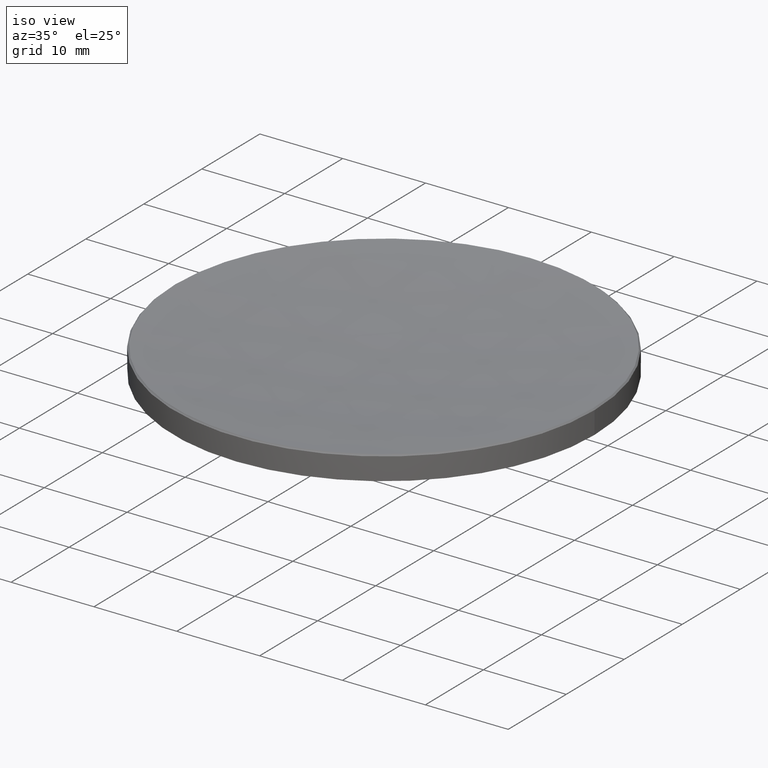
[diagram: clean part render]
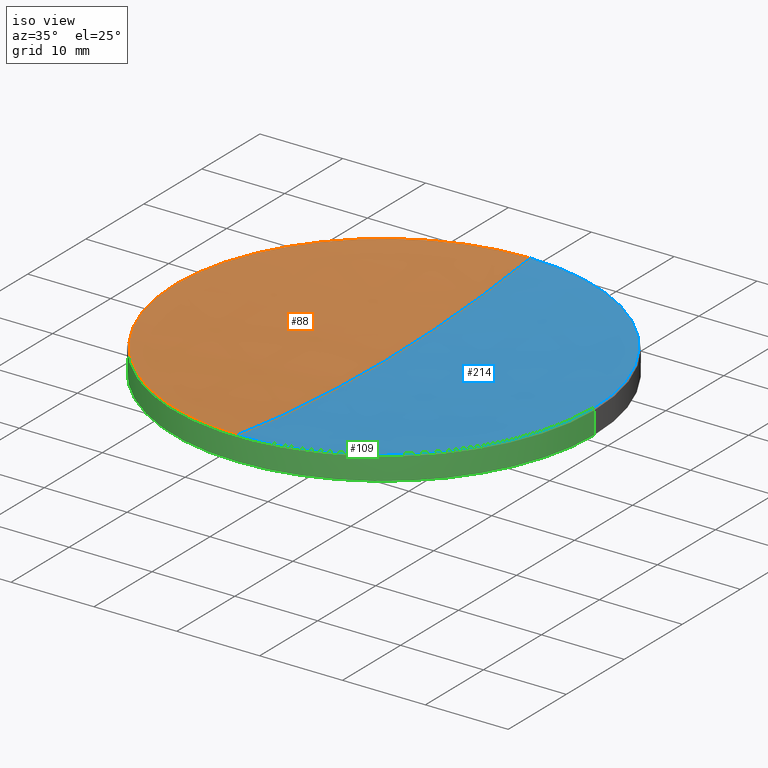
[diagram: same view with three faces highlighted in distinct colors, each labeled with its STEP entity id]
A machine part, iso view with three faces highlighted in distinct colors.
Their STEP definitions:

[orange] entity #88 — the highlighted spherical surface has radius 193.41 mm.
#1 = DIRECTION ( 'NONE',  ( -1.000000000000000000, 1.224646799147353207E-16, 0.000000000000000000 ) ) ;
#4 = EDGE_CURVE ( 'NONE', #57, #155, #127, .T. ) ;
#6 = CARTESIAN_POINT ( 'NONE',  ( 0.000000000000000000, 1.184294687115447689E-14, 15.22489014782887828 ) ) ;
#14 = CARTESIAN_POINT ( 'NONE',  ( 0.000000000000000000, 0.000000000000000000, 16.87667753647542668 ) ) ;
#16 = AXIS2_PLACEMENT_3D ( 'NONE', #29, #1, #46 ) ;
#28 = ORIENTED_EDGE ( 'NONE', *, *, #274, .F. ) ;
#29 = CARTESIAN_POINT ( 'NONE',  ( 0.000000000000000000, 0.000000000000000000, 208.6348901478288553 ) ) ;
#42 = AXIS2_PLACEMENT_3D ( 'NONE', #14, #191, #211 ) ;
#43 = ORIENTED_EDGE ( 'NONE', *, *, #161, .T. ) ;
#46 = DIRECTION ( 'NONE',  ( -1.224646799147353207E-16, -1.000000000000000000, 0.000000000000000000 ) ) ;
#48 = DIRECTION ( 'NONE',  ( 0.000000000000000000, 1.000000000000000000, 0.000000000000000000 ) ) ;
#55 = CARTESIAN_POINT ( 'NONE',  ( 0.000000000000000000, 0.000000000000000000, 208.6348901478288553 ) ) ;
#57 = VERTEX_POINT ( 'NONE', #6 ) ;
#58 = DIRECTION ( 'NONE',  ( 0.000000000000000000, 0.000000000000000000, -1.000000000000000000 ) ) ;
#62 = CIRCLE ( 'NONE', #42, 25.22332246352458540 ) ;
#67 = CIRCLE ( 'NONE', #16, 193.4099999999999682 ) ;
#82 = VERTEX_POINT ( 'NONE', #270 ) ;
#88 = ADVANCED_FACE ( 'NONE', ( #200 ), #120, .F. ) ;
#99 = ORIENTED_EDGE ( 'NONE', *, *, #138, .T. ) ;
#101 = VERTEX_POINT ( 'NONE', #190 ) ;
#114 = CIRCLE ( 'NONE', #275, 25.22332246352458540 ) ;
#120 = SPHERICAL_SURFACE ( 'NONE', #273, 193.4099999999999682 ) ;
#127 = CIRCLE ( 'NONE', #282, 193.4099999999999682 ) ;
#138 = EDGE_CURVE ( 'NONE', #101, #82, #62, .T. ) ;
#155 = VERTEX_POINT ( 'NONE', #171 ) ;
#161 = EDGE_CURVE ( 'NONE', #155, #101, #114, .T. ) ;
#170 = CARTESIAN_POINT ( 'NONE',  ( 0.000000000000000000, 0.000000000000000000, 16.87667753647542668 ) ) ;
#171 = CARTESIAN_POINT ( 'NONE',  ( 0.000000000000000000, 25.22332246352477370, 16.87667753647541247 ) ) ;
#181 = DIRECTION ( 'NONE',  ( 1.000000000000000000, 0.000000000000000000, 0.000000000000000000 ) ) ;
#190 = CARTESIAN_POINT ( 'NONE',  ( -25.22332246352458540, 0.000000000000000000, 16.87667753647542668 ) ) ;
#191 = DIRECTION ( 'NONE',  ( -0.000000000000000000, -0.000000000000000000, 1.000000000000000000 ) ) ;
#200 = FACE_OUTER_BOUND ( 'NONE', #251, .T. ) ;
#211 = DIRECTION ( 'NONE',  ( 1.000000000000000000, 0.000000000000000000, 0.000000000000000000 ) ) ;
#251 = EDGE_LOOP ( 'NONE', ( #28, #268, #43, #99 ) ) ;
#266 = CARTESIAN_POINT ( 'NONE',  ( 0.000000000000000000, 0.000000000000000000, 208.6348901478288553 ) ) ;
#267 = DIRECTION ( 'NONE',  ( -1.000000000000000000, 0.000000000000000000, 0.000000000000000000 ) ) ;
#268 = ORIENTED_EDGE ( 'NONE', *, *, #4, .T. ) ;
#270 = CARTESIAN_POINT ( 'NONE',  ( -3.088966111881714183E-15, -25.22332246352477370, 16.87667753647541247 ) ) ;
#273 = AXIS2_PLACEMENT_3D ( 'NONE', #55, #267, #48 ) ;
#274 = EDGE_CURVE ( 'NONE', #57, #82, #67, .T. ) ;
#275 = AXIS2_PLACEMENT_3D ( 'NONE', #170, #278, #277 ) ;
#277 = DIRECTION ( 'NONE',  ( 1.000000000000000000, 0.000000000000000000, 0.000000000000000000 ) ) ;
#278 = DIRECTION ( 'NONE',  ( -0.000000000000000000, -0.000000000000000000, 1.000000000000000000 ) ) ;
#282 = AXIS2_PLACEMENT_3D ( 'NONE', #266, #181, #58 ) ;

[blue] entity #214 — the highlighted spherical surface has radius 193.41 mm.
#1 = DIRECTION ( 'NONE',  ( -1.000000000000000000, 1.224646799147353207E-16, 0.000000000000000000 ) ) ;
#4 = EDGE_CURVE ( 'NONE', #57, #155, #127, .T. ) ;
#6 = CARTESIAN_POINT ( 'NONE',  ( 0.000000000000000000, 1.184294687115447689E-14, 15.22489014782887828 ) ) ;
#8 = ORIENTED_EDGE ( 'NONE', *, *, #4, .F. ) ;
#16 = AXIS2_PLACEMENT_3D ( 'NONE', #29, #1, #46 ) ;
#26 = AXIS2_PLACEMENT_3D ( 'NONE', #254, #63, #225 ) ;
#29 = CARTESIAN_POINT ( 'NONE',  ( 0.000000000000000000, 0.000000000000000000, 208.6348901478288553 ) ) ;
#46 = DIRECTION ( 'NONE',  ( -1.224646799147353207E-16, -1.000000000000000000, 0.000000000000000000 ) ) ;
#57 = VERTEX_POINT ( 'NONE', #6 ) ;
#58 = DIRECTION ( 'NONE',  ( 0.000000000000000000, 0.000000000000000000, -1.000000000000000000 ) ) ;
#60 = CARTESIAN_POINT ( 'NONE',  ( 25.22332246352458540, 3.099784490857984480E-15, 16.87667753647542668 ) ) ;
#63 = DIRECTION ( 'NONE',  ( -1.000000000000000000, 0.000000000000000000, 0.000000000000000000 ) ) ;
#67 = CIRCLE ( 'NONE', #16, 193.4099999999999682 ) ;
#71 = CIRCLE ( 'NONE', #112, 25.22332246352458540 ) ;
#73 = EDGE_CURVE ( 'NONE', #82, #137, #71, .T. ) ;
#82 = VERTEX_POINT ( 'NONE', #270 ) ;
#100 = ORIENTED_EDGE ( 'NONE', *, *, #73, .T. ) ;
#106 = FACE_OUTER_BOUND ( 'NONE', #239, .T. ) ;
#112 = AXIS2_PLACEMENT_3D ( 'NONE', #179, #227, #115 ) ;
#115 = DIRECTION ( 'NONE',  ( 1.000000000000000000, 0.000000000000000000, 0.000000000000000000 ) ) ;
#127 = CIRCLE ( 'NONE', #282, 193.4099999999999682 ) ;
#135 = ORIENTED_EDGE ( 'NONE', *, *, #261, .T. ) ;
#136 = DIRECTION ( 'NONE',  ( 1.000000000000000000, 0.000000000000000000, 0.000000000000000000 ) ) ;
#137 = VERTEX_POINT ( 'NONE', #60 ) ;
#140 = CARTESIAN_POINT ( 'NONE',  ( 0.000000000000000000, 0.000000000000000000, 16.87667753647542668 ) ) ;
#143 = CIRCLE ( 'NONE', #163, 25.22332246352458540 ) ;
#155 = VERTEX_POINT ( 'NONE', #171 ) ;
#163 = AXIS2_PLACEMENT_3D ( 'NONE', #140, #228, #136 ) ;
#167 = SPHERICAL_SURFACE ( 'NONE', #26, 193.4099999999999682 ) ;
#171 = CARTESIAN_POINT ( 'NONE',  ( 0.000000000000000000, 25.22332246352477370, 16.87667753647541247 ) ) ;
#179 = CARTESIAN_POINT ( 'NONE',  ( 0.000000000000000000, 0.000000000000000000, 16.87667753647542668 ) ) ;
#181 = DIRECTION ( 'NONE',  ( 1.000000000000000000, 0.000000000000000000, 0.000000000000000000 ) ) ;
#214 = ADVANCED_FACE ( 'NONE', ( #106 ), #167, .F. ) ;
#225 = DIRECTION ( 'NONE',  ( 0.000000000000000000, 1.000000000000000000, 0.000000000000000000 ) ) ;
#227 = DIRECTION ( 'NONE',  ( -0.000000000000000000, -0.000000000000000000, 1.000000000000000000 ) ) ;
#228 = DIRECTION ( 'NONE',  ( -0.000000000000000000, -0.000000000000000000, 1.000000000000000000 ) ) ;
#239 = EDGE_LOOP ( 'NONE', ( #8, #246, #100, #135 ) ) ;
#246 = ORIENTED_EDGE ( 'NONE', *, *, #274, .T. ) ;
#254 = CARTESIAN_POINT ( 'NONE',  ( 0.000000000000000000, 0.000000000000000000, 208.6348901478288553 ) ) ;
#261 = EDGE_CURVE ( 'NONE', #137, #155, #143, .T. ) ;
#266 = CARTESIAN_POINT ( 'NONE',  ( 0.000000000000000000, 0.000000000000000000, 208.6348901478288553 ) ) ;
#270 = CARTESIAN_POINT ( 'NONE',  ( -3.088966111881714183E-15, -25.22332246352477370, 16.87667753647541247 ) ) ;
#274 = EDGE_CURVE ( 'NONE', #57, #82, #67, .T. ) ;
#282 = AXIS2_PLACEMENT_3D ( 'NONE', #266, #181, #58 ) ;

[green] entity #109 — the highlighted cylindrical surface (partial cylindrical patch) has radius 25.4 mm, axis along (-0, -0, -1).
#5 = VECTOR ( 'NONE', #159, 1000.000000000000000 ) ;
#10 = EDGE_CURVE ( 'NONE', #160, #119, #40, .T. ) ;
#11 = VECTOR ( 'NONE', #187, 1000.000000000000000 ) ;
#13 = CARTESIAN_POINT ( 'NONE',  ( -25.39999999999999503, 0.000000000000000000, 14.00000000000000000 ) ) ;
#23 = AXIS2_PLACEMENT_3D ( 'NONE', #247, #197, #232 ) ;
#30 = ORIENTED_EDGE ( 'NONE', *, *, #196, .T. ) ;
#34 = ORIENTED_EDGE ( 'NONE', *, *, #91, .T. ) ;
#35 = CARTESIAN_POINT ( 'NONE',  ( 25.39999999999999503, 3.110602869834276471E-15, 14.00000000000000000 ) ) ;
#39 = CYLINDRICAL_SURFACE ( 'NONE', #209, 25.39999999999999858 ) ;
#40 = CIRCLE ( 'NONE', #23, 25.39999999999999503 ) ;
#54 = AXIS2_PLACEMENT_3D ( 'NONE', #259, #66, #85 ) ;
#61 = EDGE_CURVE ( 'NONE', #202, #160, #218, .T. ) ;
#66 = DIRECTION ( 'NONE',  ( 0.000000000000000000, 0.000000000000000000, -1.000000000000000000 ) ) ;
#77 = CARTESIAN_POINT ( 'NONE',  ( -25.39999999999999858, 0.000000000000000000, 16.69999999999996376 ) ) ;
#78 = LINE ( 'NONE', #230, #5 ) ;
#85 = DIRECTION ( 'NONE',  ( 1.000000000000000000, 0.000000000000000000, 0.000000000000000000 ) ) ;
#90 = CARTESIAN_POINT ( 'NONE',  ( 25.39999999999999858, 3.110602869834276865E-15, 20.00000000000000000 ) ) ;
#91 = EDGE_CURVE ( 'NONE', #223, #202, #78, .T. ) ;
#105 = LINE ( 'NONE', #90, #11 ) ;
#109 = ADVANCED_FACE ( 'NONE', ( #151 ), #39, .T. ) ;
#118 = DIRECTION ( 'NONE',  ( -0.000000000000000000, -0.000000000000000000, 1.000000000000000000 ) ) ;
#119 = VERTEX_POINT ( 'NONE', #35 ) ;
#123 = CARTESIAN_POINT ( 'NONE',  ( -3.110602869834276076E-15, -25.39999999999999147, 14.00000000000000178 ) ) ;
#128 = DIRECTION ( 'NONE',  ( -0.000000000000000000, -0.000000000000000000, -1.000000000000000000 ) ) ;
#144 = ORIENTED_EDGE ( 'NONE', *, *, #10, .T. ) ;
#150 = DIRECTION ( 'NONE',  ( -1.000000000000000000, 0.000000000000000000, 0.000000000000000000 ) ) ;
#151 = FACE_OUTER_BOUND ( 'NONE', #180, .T. ) ;
#159 = DIRECTION ( 'NONE',  ( -0.000000000000000000, -0.000000000000000000, -1.000000000000000000 ) ) ;
#160 = VERTEX_POINT ( 'NONE', #123 ) ;
#173 = CIRCLE ( 'NONE', #54, 25.39999999999999858 ) ;
#176 = VERTEX_POINT ( 'NONE', #279 ) ;
#180 = EDGE_LOOP ( 'NONE', ( #205, #30, #34, #207, #144 ) ) ;
#184 = DIRECTION ( 'NONE',  ( 1.000000000000000000, 0.000000000000000000, 0.000000000000000000 ) ) ;
#187 = DIRECTION ( 'NONE',  ( -0.000000000000000000, -0.000000000000000000, -1.000000000000000000 ) ) ;
#193 = EDGE_CURVE ( 'NONE', #176, #119, #105, .T. ) ;
#196 = EDGE_CURVE ( 'NONE', #176, #223, #173, .T. ) ;
#197 = DIRECTION ( 'NONE',  ( -0.000000000000000000, -0.000000000000000000, 1.000000000000000000 ) ) ;
#202 = VERTEX_POINT ( 'NONE', #13 ) ;
#205 = ORIENTED_EDGE ( 'NONE', *, *, #193, .F. ) ;
#207 = ORIENTED_EDGE ( 'NONE', *, *, #61, .T. ) ;
#209 = AXIS2_PLACEMENT_3D ( 'NONE', #234, #128, #150 ) ;
#217 = AXIS2_PLACEMENT_3D ( 'NONE', #224, #118, #184 ) ;
#218 = CIRCLE ( 'NONE', #217, 25.39999999999999503 ) ;
#223 = VERTEX_POINT ( 'NONE', #77 ) ;
#224 = CARTESIAN_POINT ( 'NONE',  ( 0.000000000000000000, 0.000000000000000000, 14.00000000000000000 ) ) ;
#230 = CARTESIAN_POINT ( 'NONE',  ( -25.39999999999999858, 0.000000000000000000, 20.00000000000000000 ) ) ;
#232 = DIRECTION ( 'NONE',  ( 1.000000000000000000, 0.000000000000000000, 0.000000000000000000 ) ) ;
#234 = CARTESIAN_POINT ( 'NONE',  ( 0.000000000000000000, 0.000000000000000000, 20.00000000000000000 ) ) ;
#247 = CARTESIAN_POINT ( 'NONE',  ( 0.000000000000000000, 0.000000000000000000, 14.00000000000000000 ) ) ;
#259 = CARTESIAN_POINT ( 'NONE',  ( 0.000000000000000000, 0.000000000000000000, 16.69999999999996376 ) ) ;
#279 = CARTESIAN_POINT ( 'NONE',  ( 25.39999999999999858, 3.110602869834276865E-15, 16.69999999999996376 ) ) ;